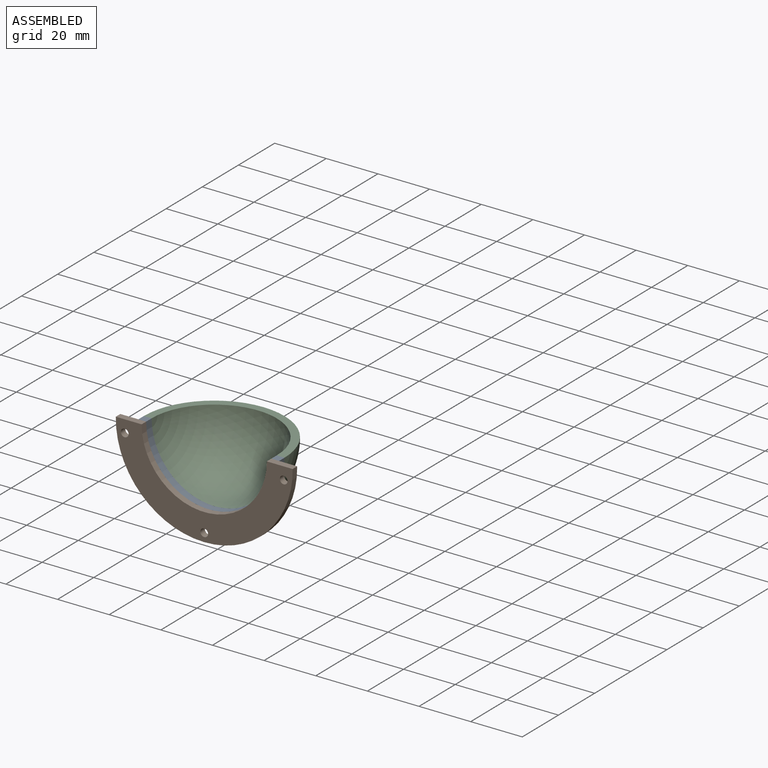
[diagram: assembled view]
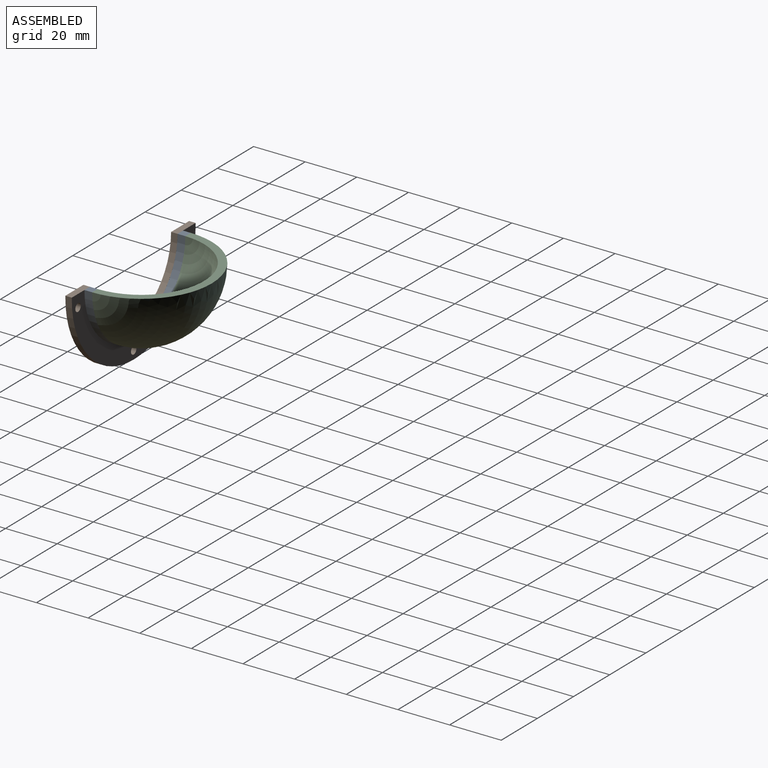
[diagram: assembled view, second angle]
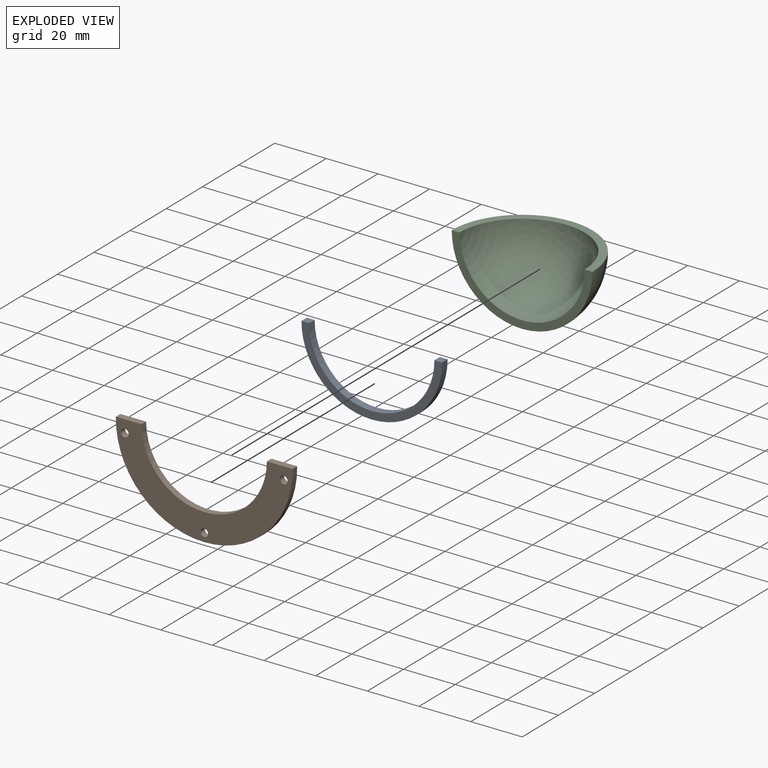
[diagram: exploded view]
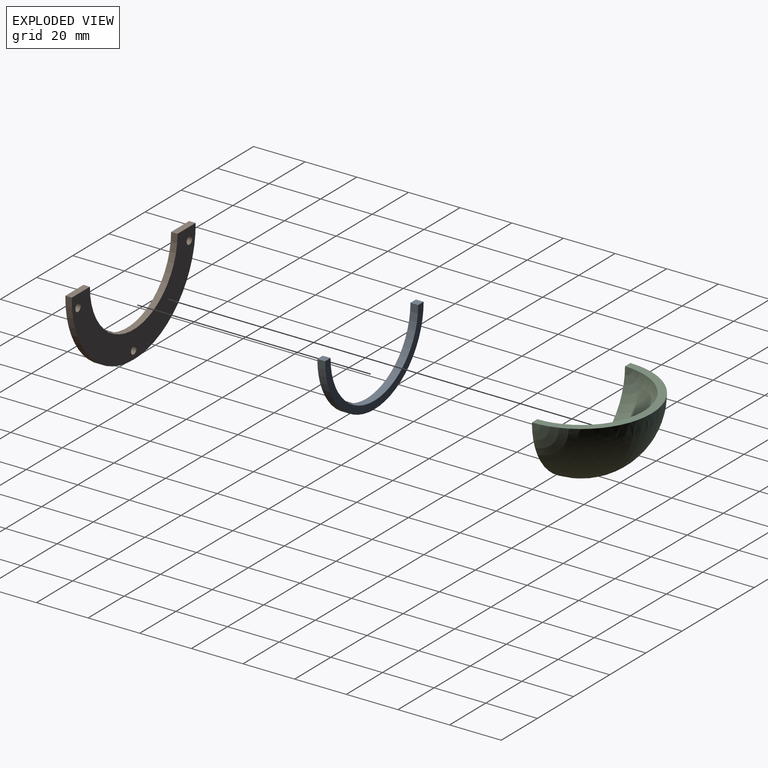
[diagram: exploded view, second angle]
ASSEMBLY  parts=3 mates=2
PART A: 6 faces, bbox 54.5x27.3x3 mm
  f0: cylinder r=27.25mm len=54.5mm, axis (0,0,-1), area 256.8mm2, adj f1,f3,f4,f5
  f1: plane 3x3mm, normal (0,1,0), area 9mm2, adj f0,f2,f4,f5
  f2: cylinder r=24.25mm len=48.5mm, axis (0,0,-1), area 228.6mm2, adj f1,f3,f4,f5
  f3: plane 3x3mm, normal (0,1,0), area 9mm2, adj f0,f2,f4,f5
  f4: plane 54.5x27.25mm, normal (0,0,1), area 242.7mm2, adj f0,f1,f2,f3
  f5: plane 54.5x27.25mm, normal (0,0,-1), area 242.7mm2, adj f0,f1,f2,f3
PART B: 9 faces, bbox 68.5x2.5x34.8 mm
  f0: cylinder r=34.25mm len=68.51mm, axis (0,1,0), area 271.5mm2, adj f1,f3,f4,f5
  f1: plane 10x2.5mm, normal (0,0,1), area 25mm2, adj f0,f2,f4,f5
  f2: cylinder r=24.25mm len=48.5mm, axis (0,1,0), area 190.5mm2, adj f1,f3,f4,f5
  f3: plane 10x2.5mm, normal (0,0,1), area 25mm2, adj f0,f2,f4,f5
  f4: plane 68.51x34.75mm, normal (0,-1,0), area 932.3mm2, adj f0,f1,f2,f3,f6,f7,f8
  f5: plane 68.51x34.75mm, normal (0,1,0), area 932.3mm2, adj f0,f1,f2,f3,f6,f7,f8
  f6: cylinder r=1.5mm len=3mm, axis (0,1,0), area 23.6mm2, adj f4,f5
  f7: cylinder r=1.5mm len=3mm, axis (0,1,0), area 23.6mm2, adj f4,f5
  f8: cylinder r=1.5mm len=3mm, axis (0,1,0), area 23.6mm2, adj f4,f5
PART C: 4 faces, bbox 27.3x54.5x27.3 mm
  f0: sphere r=24.25mm, area 1847.5mm2, adj f2,f3
  f1: sphere r=27.25mm, area 2332.8mm2, adj f2,f3
  f2: plane 54.5x27.25mm, normal (-1,0,0), area 242.7mm2, adj f0,f1,f3
  f3: plane 54.5x27.25mm, normal (0,0,1), area 242.7mm2, adj f0,f1,f2
PLACE A rot(axis=(1,0,0),90deg) t=(-4.97,25.16,-0.61)mm
PLACE B t=(-4.97,22.16,-0.61)mm
PLACE C rot(axis=(0,0,1),90deg) t=(-4.97,25.16,-0.61)mm
MATE fastened C.f2 <-> A.f2  axis (0,-1,0) through (-4.97,25.16,-0.61)mm
MATE fastened A.f0 <-> B.f2  axis (0,-1,0) through (-4.97,22.16,-0.61)mm
